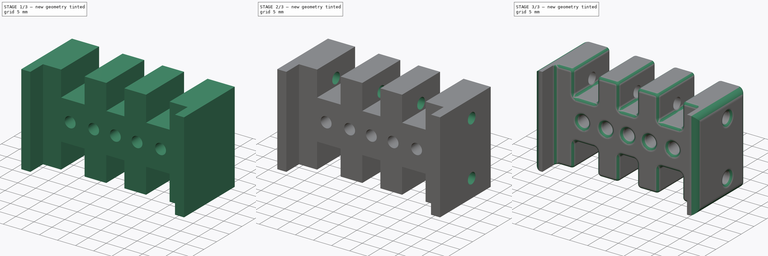
[diagram: build sequence overview — one tinted view per stage of 3, left to right]
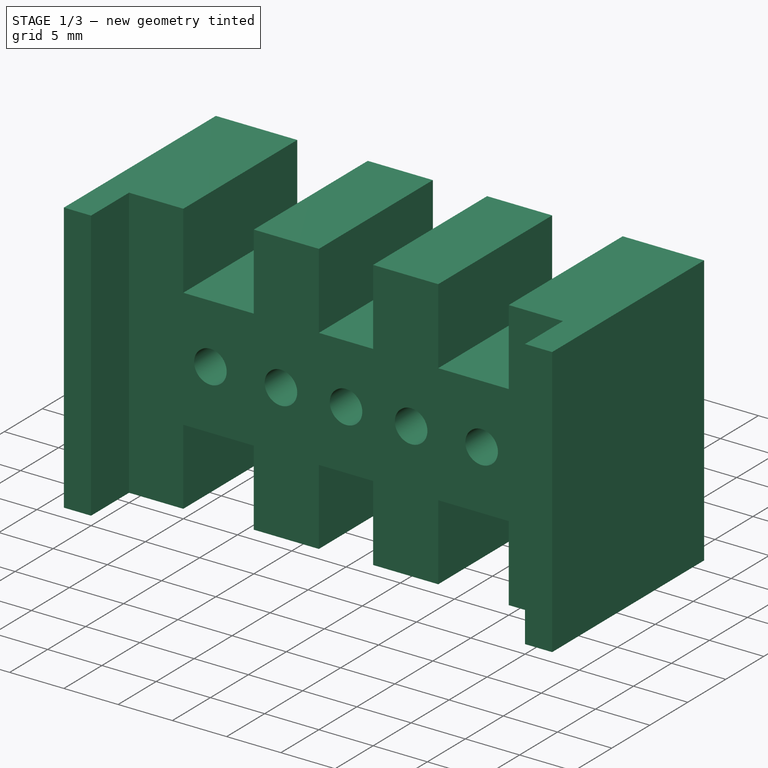
[diagram: stage 1 of 3 — iso view after this stage's code; geometry added in this stage tinted green]
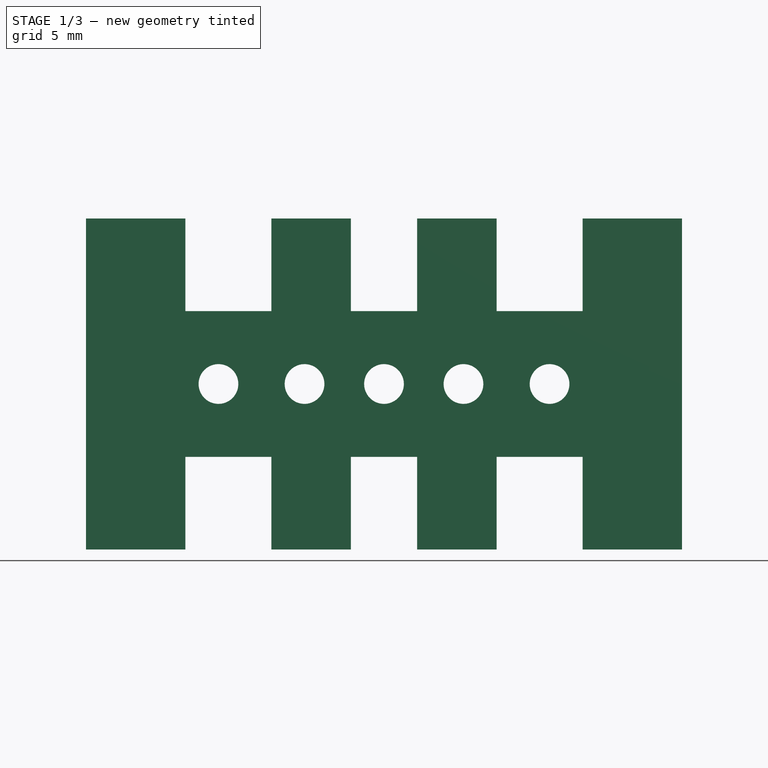
[diagram: stage 1 of 3 — front view after this stage's code; geometry added in this stage tinted green]
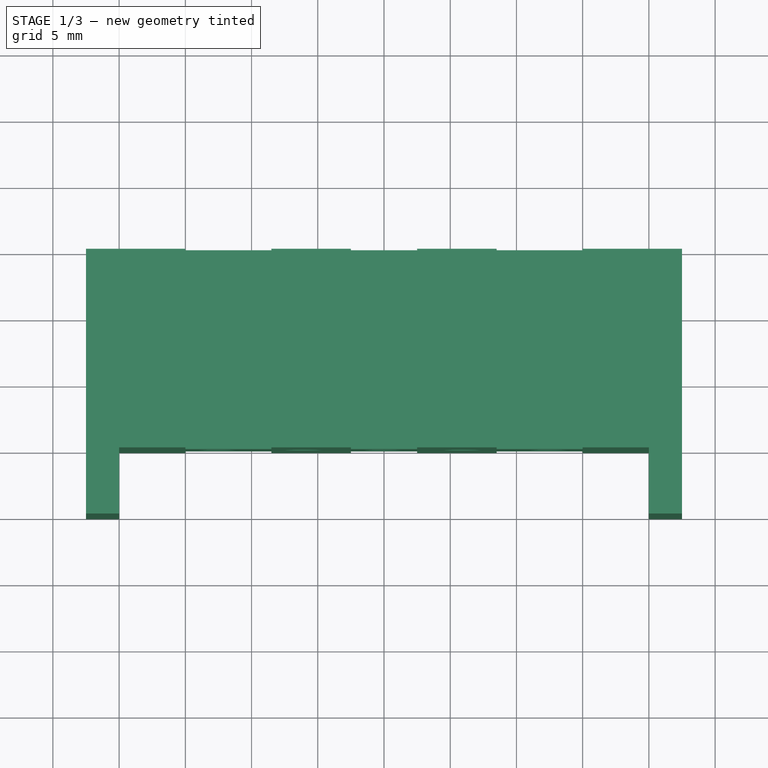
[diagram: stage 1 of 3 — top view after this stage's code; geometry added in this stage tinted green]
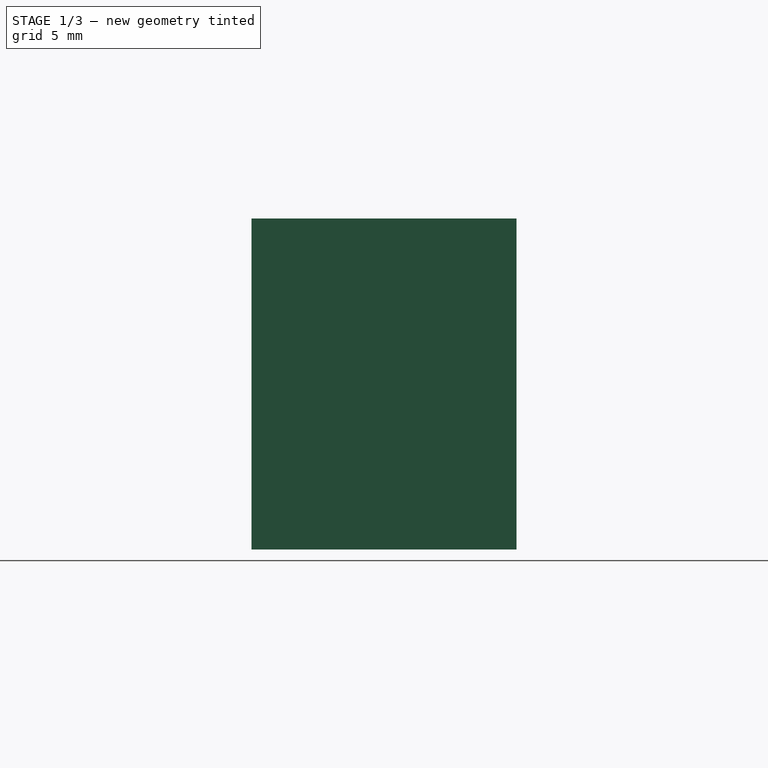
[diagram: stage 1 of 3 — right view after this stage's code; geometry added in this stage tinted green]
FCSTD DOCUMENT  (FreeCAD 1.1R38794 (Git))
Label: switcher_stand
License: All rights reserved
LicenseURL: https://en.wikipedia.org/wiki/All_rights_reserved
objects: Sketcher::SketchObject×3, PartDesign::Pocket×2, PartDesign::Fillet×2, PartDesign::Pad×1, App::Link×1, PartDesign::Body×1
note: 22 computed .brp shape members not serialized (recipe doc carries the construction recipe); baked Part::Feature solids carry a one-line shape summary decoded from their .brp
EXTERNAL_REF file=Masterfile.FCStd obj=Spreadsheet

FEATURE [Sketcher::SketchObject] Sketch
  ArcFitTolerance = 1e-06
  AttachmentSupport = -> [XY_Plane]
  FullyConstrained = true
  MakeInternals = false
  MapMode = 5
  sketch-geometry (10):
    g0: LineSegment StartX=-22.5 StartY=15 StartZ=0 EndX=-22.5 EndY=4.61338e-11 EndZ=0
    g1: LineSegment StartX=-20 StartY=0 StartZ=0 EndX=20 EndY=0 EndZ=0
    g2: LineSegment StartX=22.5 StartY=0 StartZ=0 EndX=22.5 EndY=15 EndZ=0
    g3: LineSegment StartX=22.5 StartY=15 StartZ=0 EndX=-22.5 EndY=15 EndZ=0
    g4: LineSegment StartX=-22.5 StartY=4.61338e-11 StartZ=0 EndX=-22.5 EndY=-5 EndZ=0
    g5: LineSegment StartX=-22.5 StartY=-5 StartZ=0 EndX=-20 EndY=-5 EndZ=0
    g6: LineSegment StartX=-20 StartY=-5 StartZ=0 EndX=-20 EndY=0 EndZ=0
    g7: LineSegment StartX=20 StartY=0 StartZ=0 EndX=20 EndY=-5 EndZ=0
    g8: LineSegment StartX=20 StartY=-5 StartZ=0 EndX=22.5 EndY=-5 EndZ=0
    g9: LineSegment StartX=22.5 StartY=-5 StartZ=0 EndX=22.5 EndY=0 EndZ=0
  constraints (29):
    c: Coincident(g2,g3)
    c: Coincident(g3,g0)
    c: Vertical(g0)
    c: Vertical(g2)
    c: Horizontal(g3)
    c: PointOnObject(g2,g-1)
    c: DistanceY(g2,g2) = 15
    c: DistanceX(g3,g3) = 45
    c: Coincident(g4,g5)
    c: Coincident(g5,g6)
    c: Vertical(g4)
    c: Vertical(g6)
    c: Horizontal(g5)
    c: Coincident(g4,g0)
    c: Coincident(g7,g8)
    c: Coincident(g8,g9)
    c: Horizontal(g8)
    c: Vertical(g7)
    c: Vertical(g9)
    c: Symmetric(g5,g7,g-2)
    c: DistanceY(g4,g4) = 5
    c: Equal(g5,g8)
    c: Equal(g0,g2)
    c: Coincident(g1,g6)
    c: PointOnObject(g1,g-1)
    c: DistanceX(g5,g7) = 40
    c: Coincident(g1,g7)
    c: PointOnObject(g1,g-1)
    c: Coincident(g2,g9)
FEATURE [PartDesign::Pad] Pad
  Direction = (0,0,1)
  Length = 25
  Length2 = 10
  Profile = -> Sketch
  ReferenceAxis = -> Sketch [N_Axis]
  Refine = true
  Suppressed = false
  Type = 0
FEATURE [Sketcher::SketchObject] Sketch001
  ArcFitTolerance = 1e-06
  AttachmentSupport = -> [Pad]
  ExternalGeometry = -> [Pad]
  FullyConstrained = false
  MakeInternals = false
  MapMode = 5
  Placement = pos=(0,15,0) rot=(0,0.707107,0.707107;3.14159rad)
  expr: Constraints[8] = <<LinkDimensions>>.railCarrierHandle
  sketch-geometry (30):
    g0: LineSegment [constr] StartX=-77.7915 StartY=12.5 StartZ=0 EndX=77.7915 EndY=12.5 EndZ=0
    g1: Circle CenterX=-12.5 CenterY=12.5 CenterZ=0 NormalX=0 NormalY=0 NormalZ=1 AngleXU=0 Radius=1.5
    g2: Circle CenterX=0 CenterY=12.5 CenterZ=0 NormalX=0 NormalY=0 NormalZ=1 AngleXU=0 Radius=1.5
    g3: Circle CenterX=12.5 CenterY=12.5 CenterZ=0 NormalX=0 NormalY=0 NormalZ=1 AngleXU=0 Radius=1.5
    g4: Circle CenterX=-6 CenterY=12.5 CenterZ=0 NormalX=0 NormalY=0 NormalZ=1 AngleXU=0 Radius=1.5
    g5: Circle CenterX=6 CenterY=12.5 CenterZ=0 NormalX=0 NormalY=0 NormalZ=1 AngleXU=0 Radius=1.5
    g6: LineSegment StartX=-15 StartY=0 StartZ=0 EndX=-8.5 EndY=0 EndZ=0
    g7: LineSegment StartX=-8.5 StartY=0 StartZ=0 EndX=-8.5 EndY=7 EndZ=0
    g8: LineSegment StartX=-8.5 StartY=7 StartZ=0 EndX=-15 EndY=7 EndZ=0
    g9: LineSegment StartX=-15 StartY=7 StartZ=0 EndX=-15 EndY=0 EndZ=0
    g10: LineSegment StartX=8.5 StartY=0 StartZ=0 EndX=15 EndY=0 EndZ=0
    g11: LineSegment StartX=15 StartY=0 StartZ=0 EndX=15 EndY=7 EndZ=0
    g12: LineSegment StartX=15 StartY=7 StartZ=0 EndX=8.5 EndY=7 EndZ=0
    g13: LineSegment StartX=8.5 StartY=7 StartZ=0 EndX=8.5 EndY=0 EndZ=0
    g14: LineSegment StartX=-15 StartY=25 StartZ=0 EndX=-15 EndY=18 EndZ=0
    g15: LineSegment StartX=-15 StartY=18 StartZ=0 EndX=-8.5 EndY=18 EndZ=0
    g16: LineSegment StartX=-8.5 StartY=18 StartZ=0 EndX=-8.5 EndY=25 EndZ=0
    g17: LineSegment StartX=-8.5 StartY=25 StartZ=0 EndX=-15 EndY=25 EndZ=0
    g18: LineSegment StartX=8.5 StartY=25 StartZ=0 EndX=8.5 EndY=18 EndZ=0
    g19: LineSegment StartX=8.5 StartY=18 StartZ=0 EndX=15 EndY=18 EndZ=0
    g20: LineSegment StartX=15 StartY=18 StartZ=0 EndX=15 EndY=25 EndZ=0
    g21: LineSegment StartX=15 StartY=25 StartZ=0 EndX=8.5 EndY=25 EndZ=0
    g22: LineSegment StartX=-2.5 StartY=0 StartZ=0 EndX=2.5 EndY=0 EndZ=0
    g23: LineSegment StartX=2.5 StartY=0 StartZ=0 EndX=2.5 EndY=7 EndZ=0
    g24: LineSegment StartX=2.5 StartY=7 StartZ=0 EndX=-2.5 EndY=7 EndZ=0
    g25: LineSegment StartX=-2.5 StartY=7 StartZ=0 EndX=-2.5 EndY=0 EndZ=0
    g26: LineSegment StartX=-2.5 StartY=25 StartZ=0 EndX=-2.5 EndY=18 EndZ=0
    g27: LineSegment StartX=-2.5 StartY=18 StartZ=0 EndX=2.5 EndY=18 EndZ=0
    g28: LineSegment StartX=2.5 StartY=18 StartZ=0 EndX=2.5 EndY=25 EndZ=0
    g29: LineSegment StartX=2.5 StartY=25 StartZ=0 EndX=-2.5 EndY=25 EndZ=0
  constraints (79):
    c: Symmetric(g-3,g-4,g0)
    c: PointOnObject(g1,g0)
    c: Symmetric(g0,g0,g2)
    c: PointOnObject(g2,g-2)
    c: Equal(g1,g2)
    c: Equal(g2,g3)
    c: Symmetric(g1,g3,g-2)
    c: Diameter(g1) = 3
    c: DistanceX(g1,g3) = 25
    c: PointOnObject(g4,g0)
    c: Equal(g4,g5)
    c: Equal(g5,g3)
    c: Symmetric(g4,g5,g-2)
    c: DistanceX(g4,g5) = 12
    c: Coincident(g6,g7)
    c: Coincident(g7,g8)
    c: Coincident(g8,g9)
    c: Coincident(g9,g6)
    c: Horizontal(g6)
    c: Horizontal(g8)
    c: Vertical(g7)
    c: Vertical(g9)
    c: PointOnObject(g6,g-4)
    c: Coincident(g10,g11)
    c: Coincident(g11,g12)
    c: Coincident(g12,g13)
    c: Coincident(g13,g10)
    c: Horizontal(g10)
    c: Horizontal(g12)
    c: Vertical(g11)
    c: Vertical(g13)
    c: PointOnObject(g10,g-4)
    c: Coincident(g14,g15)
    c: Coincident(g15,g16)
    c: Coincident(g16,g17)
    c: Coincident(g17,g14)
    c: Vertical(g14)
    c: Vertical(g16)
    c: Horizontal(g15)
    c: Horizontal(g17)
    c: PointOnObject(g14,g-3)
    c: Coincident(g18,g19)
    c: Coincident(g19,g20)
    c: Coincident(g20,g21)
    c: Coincident(g21,g18)
    c: Vertical(g18)
    c: Vertical(g20)
    c: Horizontal(g21)
    c: PointOnObject(g18,g-3)
    c: Symmetric(g15,g18,g-2)
    c: Symmetric(g7,g12,g-2)
    c: Symmetric(g19,g11,g0)
    c: Symmetric(g8,g14,g0)
    c: Equal(g8,g15)
    c: Equal(g19,g15)
    c: DistanceX(g6,g10) = 30
    c: DistanceY(g20,g20) = 7
    c: DistanceX(g6,g10) = 17
    c: Coincident(g22,g23)
    c: Coincident(g23,g24)
    c: Coincident(g24,g25)
    c: Coincident(g25,g22)
    c: Horizontal(g24)
    c: Vertical(g23)
    c: Vertical(g25)
    c: PointOnObject(g22,g-4)
    c: Coincident(g26,g27)
    c: Coincident(g27,g28)
    c: Coincident(g28,g29)
    c: Coincident(g29,g26)
    c: Vertical(g26)
    c: Vertical(g28)
    c: Horizontal(g29)
    c: PointOnObject(g26,g-3)
    c: Symmetric(g26,g24,g0)
    c: Symmetric(g22,g22,g-2)
    c: Equal(g7,g25)
    c: Symmetric(g23,g27,g0)
    c: DistanceX(g29,g29) = 5
FEATURE [PartDesign::Pocket] Pocket
  BaseFeature = -> Pad
  Direction = (0,-1,2e-16)
  Length = 5
  Length2 = 5
  Profile = -> Sketch001
  ReferenceAxis = -> Sketch001 [N_Axis]
  Refine = true
  Suppressed = false
  Type = 1
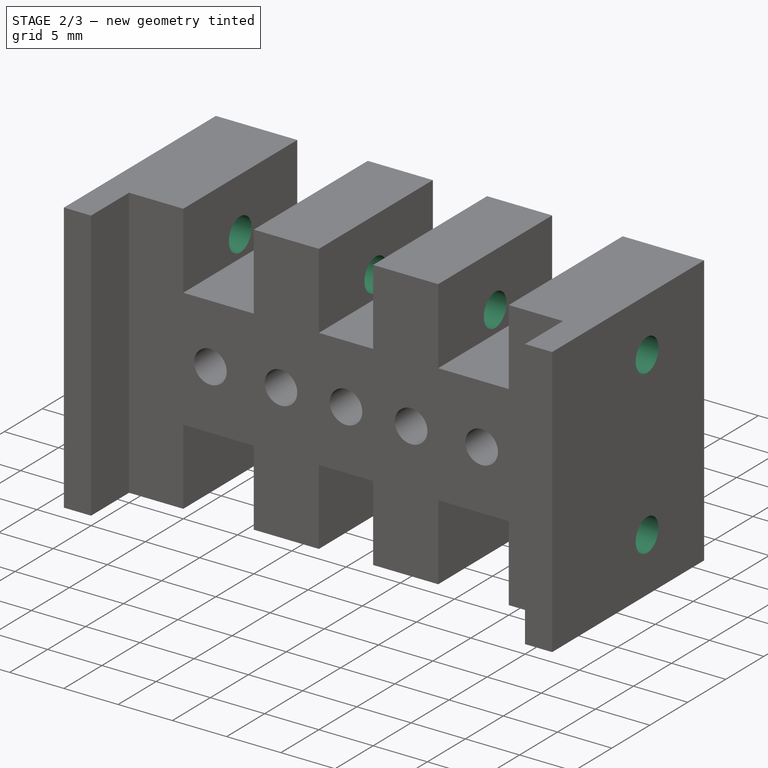
[diagram: stage 2 of 3 — iso view after this stage's code; geometry added in this stage tinted green]
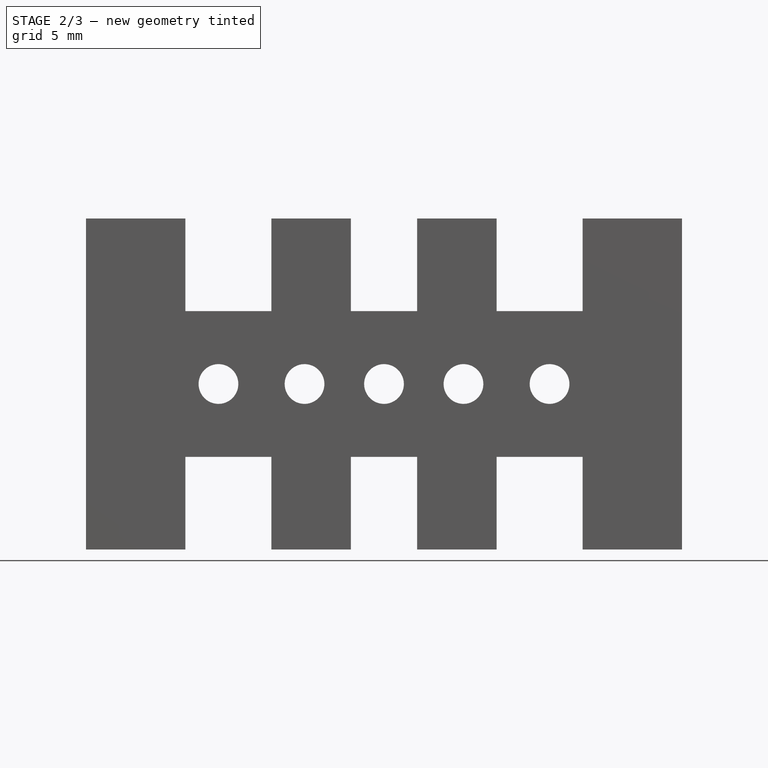
[diagram: stage 2 of 3 — front view after this stage's code; geometry added in this stage tinted green]
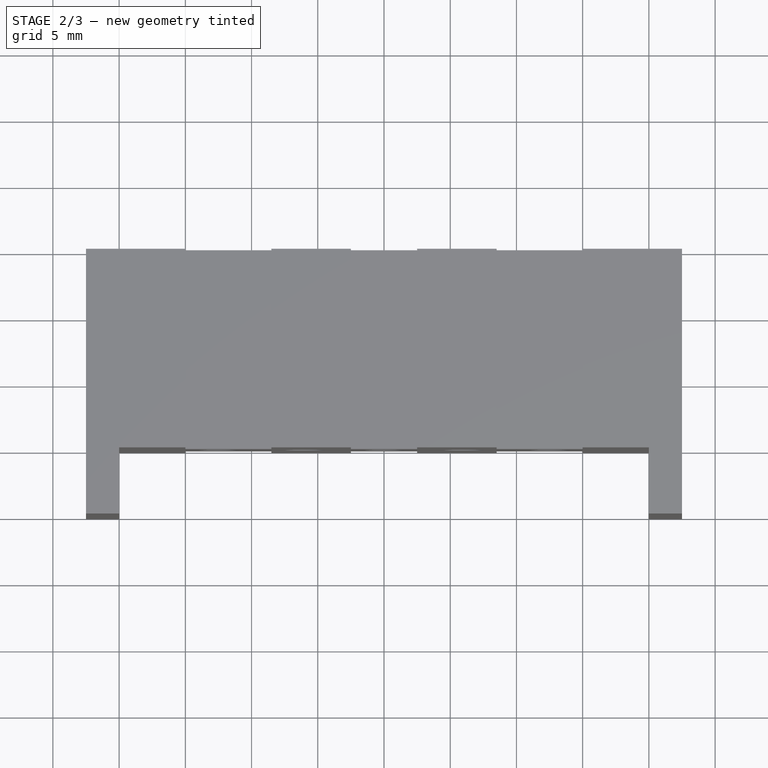
[diagram: stage 2 of 3 — top view after this stage's code; geometry added in this stage tinted green]
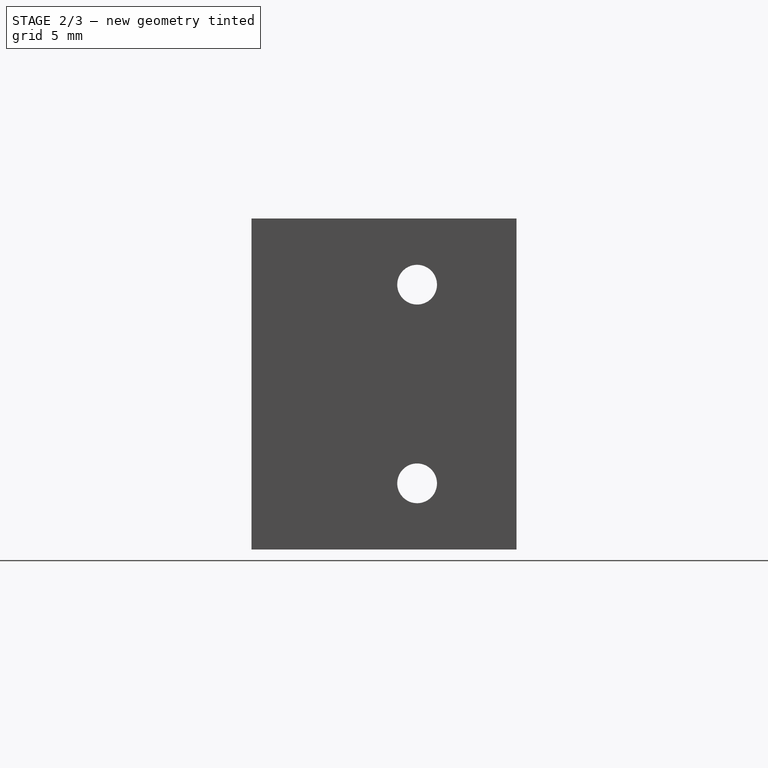
[diagram: stage 2 of 3 — right view after this stage's code; geometry added in this stage tinted green]
FEATURE [App::Link] Link  label="LinkDimensions"
  LinkedObject = -> <external Masterfile.FCStd>#Spreadsheet
FEATURE [Sketcher::SketchObject] Sketch002
  ArcFitTolerance = 1e-06
  AttachmentSupport = -> [Pocket]
  ExternalGeometry = -> [Pocket]
  FullyConstrained = false
  MakeInternals = false
  MapMode = 5
  Placement = pos=(22.5,0,0) rot=(0.57735,0.57735,0.57735;2.0944rad)
  sketch-geometry (4):
    g0: LineSegment [constr] StartX=-23.1192 StartY=12.5 StartZ=0 EndX=42.8692 EndY=12.5 EndZ=0
    g1: Circle CenterX=7.5 CenterY=20 CenterZ=0 NormalX=0 NormalY=0 NormalZ=1 AngleXU=0 Radius=1.5
    g2: Circle CenterX=7.5 CenterY=5 CenterZ=0 NormalX=0 NormalY=0 NormalZ=1 AngleXU=0 Radius=1.5
    g3: LineSegment [constr] StartX=7.5 StartY=28.9661 StartZ=0 EndX=7.5 EndY=-11.4594 EndZ=0
  constraints (7):
    c: Equal(g1,g2)
    c: Symmetric(g1,g2,g0)
    c: Diameter(g1) = 3
    c: DistanceY(g2,g1) = 15
    c: Symmetric(g-3,g-3,g0)
    c: Symmetric(g-1,g-3,g3)
    c: PointOnObject(g2,g3)
FEATURE [PartDesign::Pocket] Pocket001
  BaseFeature = -> Pocket
  Direction = (-1,0,0)
  Length = 5
  Length2 = 5
  Profile = -> Sketch002
  ReferenceAxis = -> Sketch002 [N_Axis]
  Refine = true
  Suppressed = false
  Type = 1
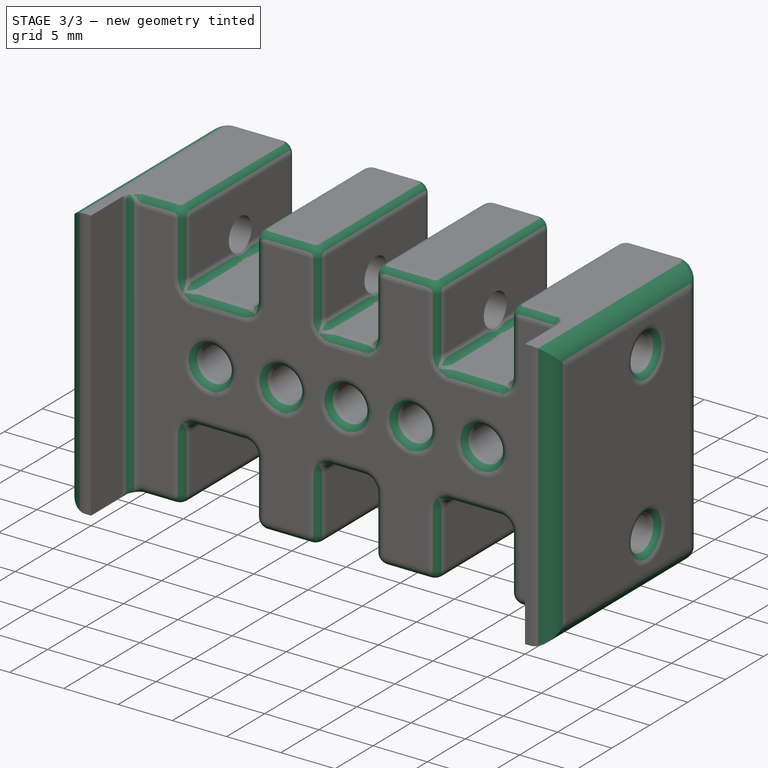
[diagram: stage 3 of 3 — iso view after this stage's code; geometry added in this stage tinted green]
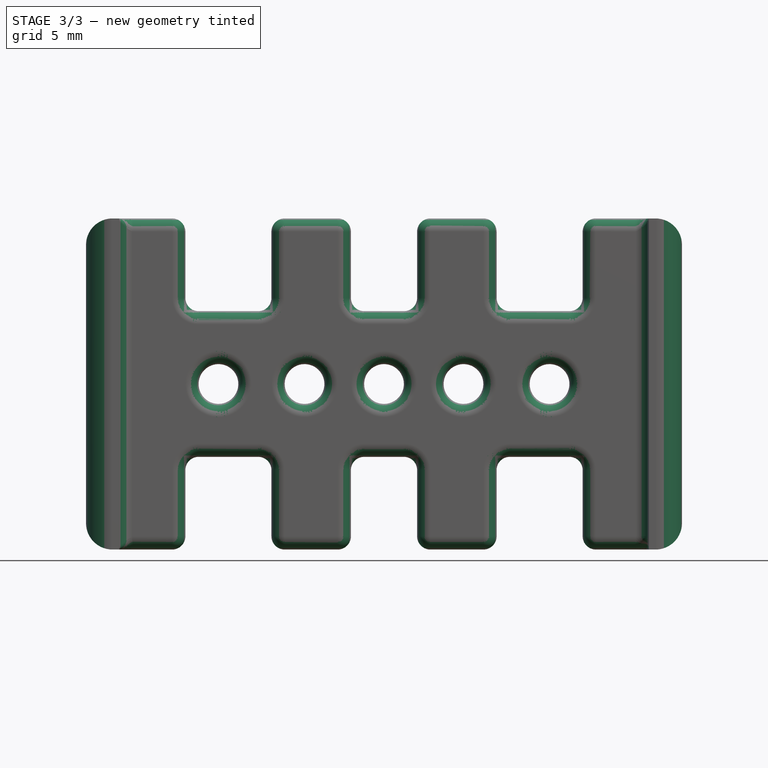
[diagram: stage 3 of 3 — front view after this stage's code; geometry added in this stage tinted green]
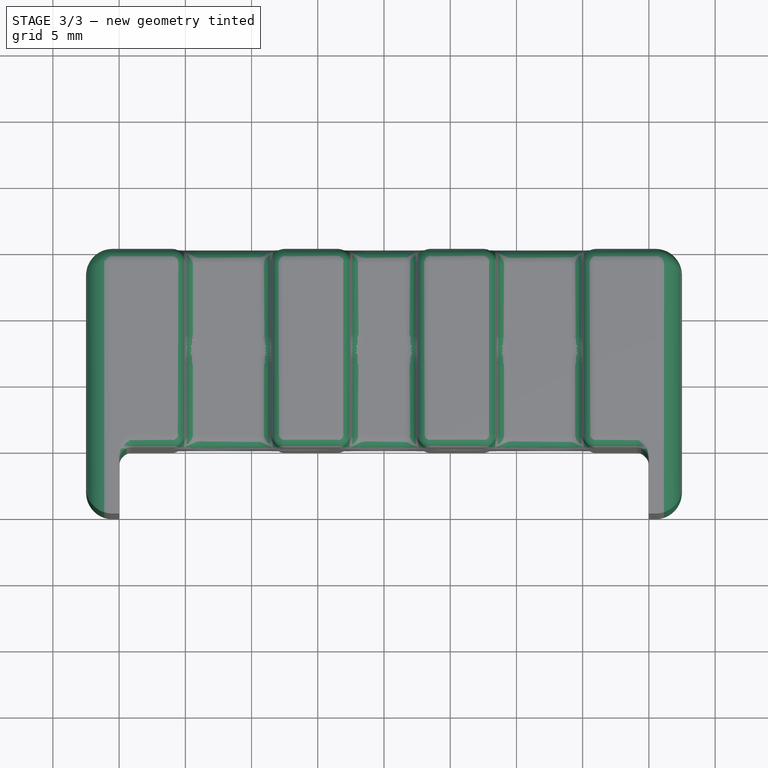
[diagram: stage 3 of 3 — top view after this stage's code; geometry added in this stage tinted green]
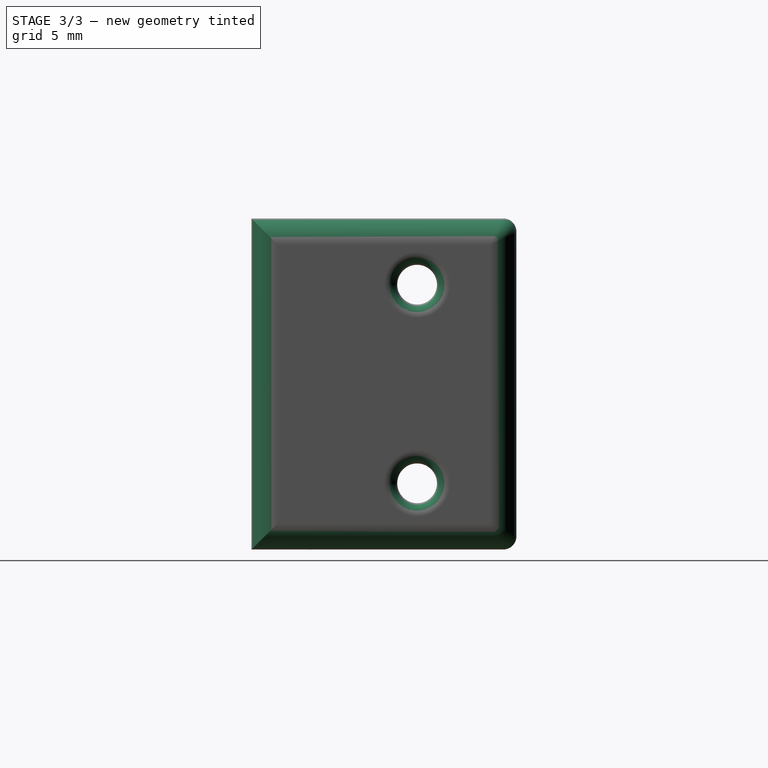
[diagram: stage 3 of 3 — right view after this stage's code; geometry added in this stage tinted green]
FEATURE [PartDesign::Fillet] Fillet
  Base = -> Pocket001 [Edge85,Edge118,Edge43,Edge121,Edge7,Edge5,Edge6,Edge1]
  BaseFeature = -> Pocket001
  Radius = 2
  Refine = true
  SupportTransform = false
  Suppressed = false
  UseAllEdges = false
FEATURE [PartDesign::Fillet] Fillet001
  Base = -> Fillet [Face6,Face9,Face33,Face25,Face17,Face35,Face28,Face20,Edge101,Edge111,Edge115,Edge123,Edge127,Edge17,Edge92,Edge107,Edge110,Edge119,Edge122,Edge7,Edge86,Edge87,Edge144,Edge143]
  BaseFeature = -> Fillet
  Radius = 1
  Refine = true
  SupportTransform = false
  Suppressed = false
  UseAllEdges = false
FEATURE [PartDesign::Body] Body
  AllowCompound = false
  Group = -> [Sketch,Pad,Sketch001,Pocket,Sketch002,Pocket001,Fillet,Fillet001]
  Origin = -> Origin
  Tip = -> Fillet001
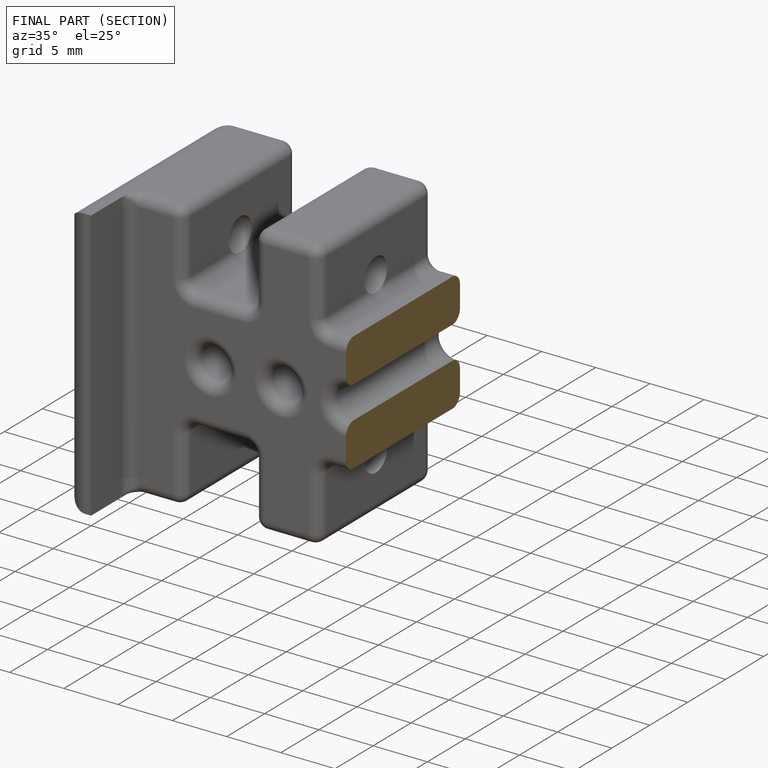
[diagram: finished part — half-section view (interior)]
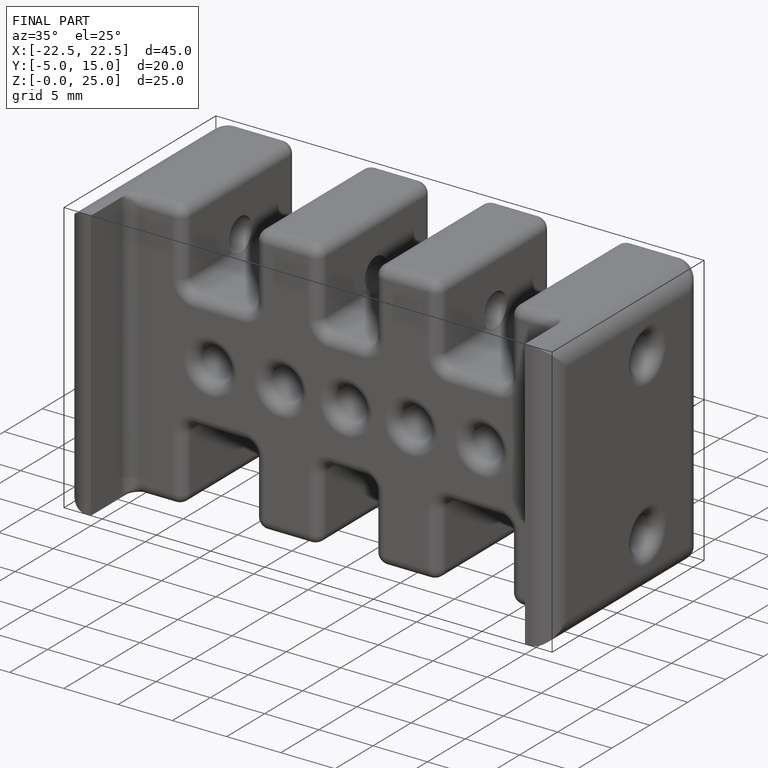
[diagram: finished part — iso view with bounding-box wireframe]
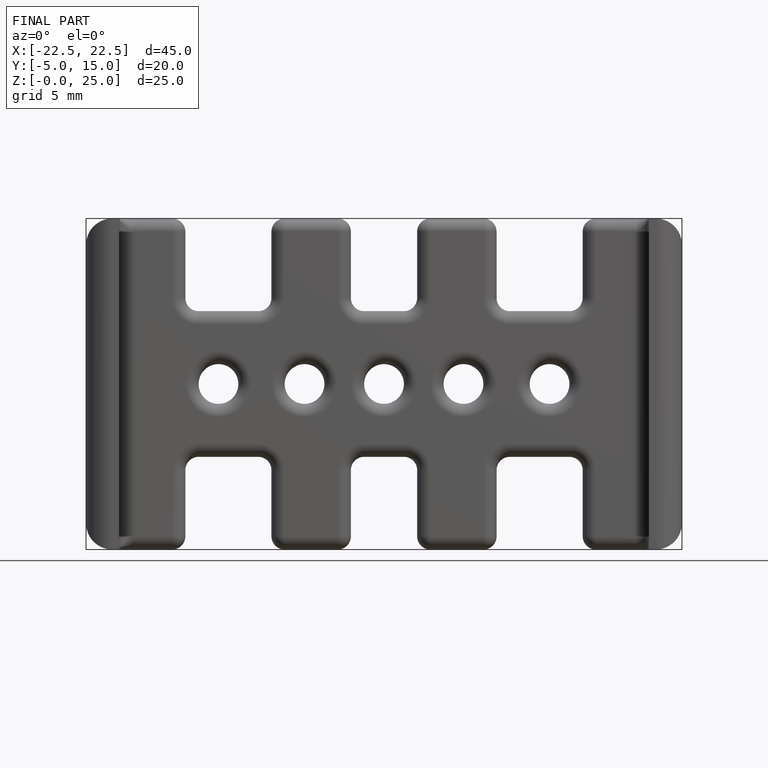
[diagram: finished part — front view with bounding-box wireframe]
